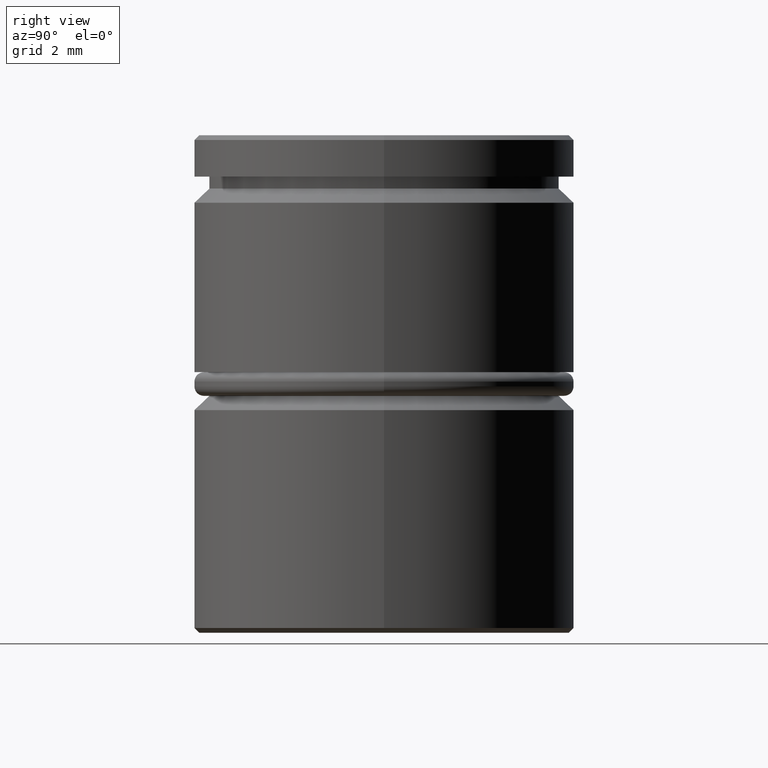
[diagram: clean part render]
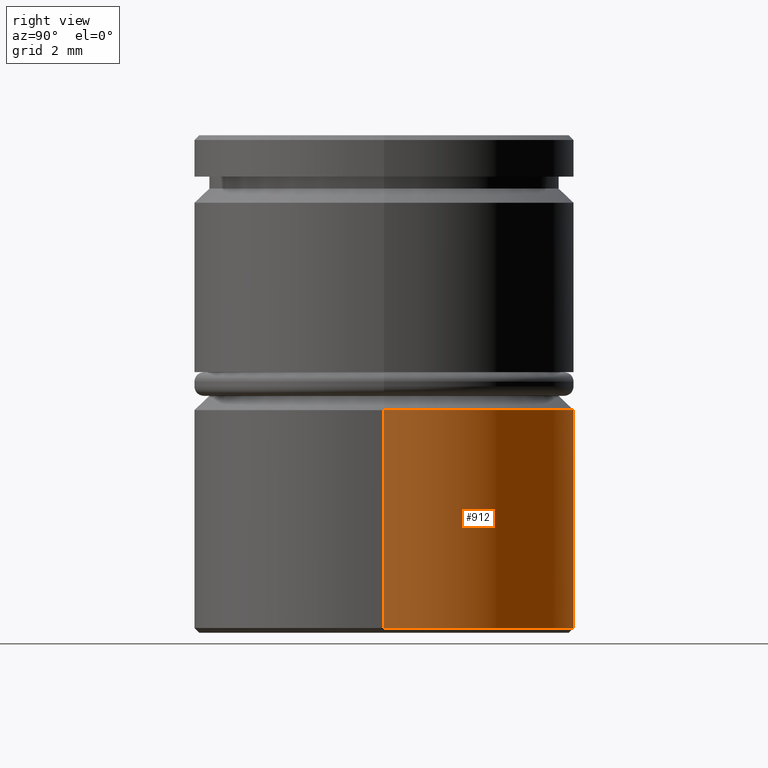
[diagram: same view with one face highlighted and labeled with its STEP entity id]
A machine part, right view. The second image highlights one B-rep face of the part: STEP entity #912.
In plain terms, the highlighted cylindrical surface (partial cylindrical patch) has radius 4 mm, axis along (-0, -0, 1).
Its self-contained STEP definition (entity closure, byte-faithful):
#80 = CARTESIAN_POINT ( 'NONE',  ( 0.000000000000000000, 0.000000000000000000, 0.000000000000000000 ) ) ;
#161 = DIRECTION ( 'NONE',  ( -1.000000000000000000, 0.000000000000000000, 0.000000000000000000 ) ) ;
#170 = DIRECTION ( 'NONE',  ( 1.000000000000000000, 0.000000000000000000, 0.000000000000000000 ) ) ;
#174 = VERTEX_POINT ( 'NONE', #1044 ) ;
#183 = ORIENTED_EDGE ( 'NONE', *, *, #668, .T. ) ;
#246 = CARTESIAN_POINT ( 'NONE',  ( 0.000000000000000000, 0.000000000000000000, -10.40000000000000213 ) ) ;
#251 = DIRECTION ( 'NONE',  ( -0.000000000000000000, -0.000000000000000000, 1.000000000000000000 ) ) ;
#296 = ORIENTED_EDGE ( 'NONE', *, *, #368, .F. ) ;
#304 = VECTOR ( 'NONE', #971, 1000.000000000000000 ) ;
#319 = ORIENTED_EDGE ( 'NONE', *, *, #826, .T. ) ;
#343 = LINE ( 'NONE', #1074, #905 ) ;
#368 = EDGE_CURVE ( 'NONE', #552, #174, #434, .T. ) ;
#380 = CARTESIAN_POINT ( 'NONE',  ( -4.000000000000000000, 4.898587196589412829E-16, -5.800000000000003375 ) ) ;
#406 = EDGE_CURVE ( 'NONE', #552, #989, #681, .T. ) ;
#424 = CARTESIAN_POINT ( 'NONE',  ( 0.000000000000000000, 0.000000000000000000, -5.800000000000003375 ) ) ;
#433 = AXIS2_PLACEMENT_3D ( 'NONE', #246, #510, #161 ) ;
#434 = LINE ( 'NONE', #801, #304 ) ;
#510 = DIRECTION ( 'NONE',  ( -0.000000000000000000, -0.000000000000000000, 1.000000000000000000 ) ) ;
#552 = VERTEX_POINT ( 'NONE', #633 ) ;
#633 = CARTESIAN_POINT ( 'NONE',  ( 4.000000000000000000, 0.000000000000000000, -10.40000000000000213 ) ) ;
#668 = EDGE_CURVE ( 'NONE', #757, #174, #739, .T. ) ;
#681 = CIRCLE ( 'NONE', #433, 4.000000000000000000 ) ;
#739 = CIRCLE ( 'NONE', #849, 4.000000000000000000 ) ;
#757 = VERTEX_POINT ( 'NONE', #380 ) ;
#801 = CARTESIAN_POINT ( 'NONE',  ( 4.000000000000000000, 0.000000000000000000, 0.000000000000000000 ) ) ;
#804 = DIRECTION ( 'NONE',  ( -0.000000000000000000, -0.000000000000000000, 1.000000000000000000 ) ) ;
#826 = EDGE_CURVE ( 'NONE', #989, #757, #343, .T. ) ;
#849 = AXIS2_PLACEMENT_3D ( 'NONE', #424, #962, #1058 ) ;
#866 = CYLINDRICAL_SURFACE ( 'NONE', #1040, 4.000000000000000000 ) ;
#905 = VECTOR ( 'NONE', #804, 1000.000000000000000 ) ;
#912 = ADVANCED_FACE ( 'NONE', ( #1152 ), #866, .T. ) ;
#935 = EDGE_LOOP ( 'NONE', ( #1011, #319, #183, #296 ) ) ;
#962 = DIRECTION ( 'NONE',  ( 0.000000000000000000, 0.000000000000000000, -1.000000000000000000 ) ) ;
#971 = DIRECTION ( 'NONE',  ( -0.000000000000000000, -0.000000000000000000, 1.000000000000000000 ) ) ;
#989 = VERTEX_POINT ( 'NONE', #1084 ) ;
#1011 = ORIENTED_EDGE ( 'NONE', *, *, #406, .T. ) ;
#1040 = AXIS2_PLACEMENT_3D ( 'NONE', #80, #251, #170 ) ;
#1044 = CARTESIAN_POINT ( 'NONE',  ( 4.000000000000000000, 0.000000000000000000, -5.800000000000003375 ) ) ;
#1058 = DIRECTION ( 'NONE',  ( 1.000000000000000000, 0.000000000000000000, 0.000000000000000000 ) ) ;
#1074 = CARTESIAN_POINT ( 'NONE',  ( -4.000000000000000000, 4.898587196589412829E-16, 0.000000000000000000 ) ) ;
#1084 = CARTESIAN_POINT ( 'NONE',  ( -4.000000000000000000, 4.898587196589412829E-16, -10.40000000000000213 ) ) ;
#1152 = FACE_OUTER_BOUND ( 'NONE', #935, .T. ) ;